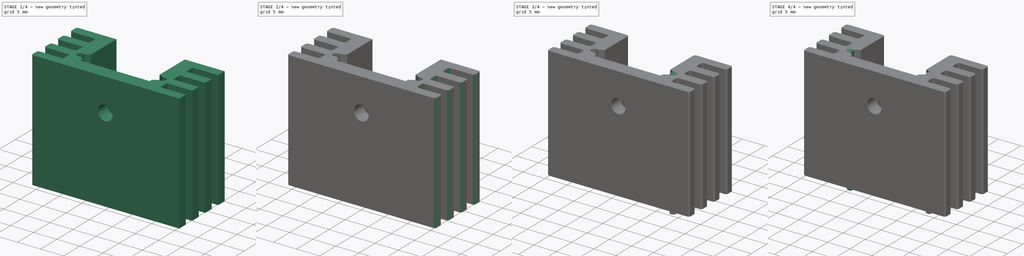
[diagram: build sequence overview — one tinted view per stage of 4, left to right]
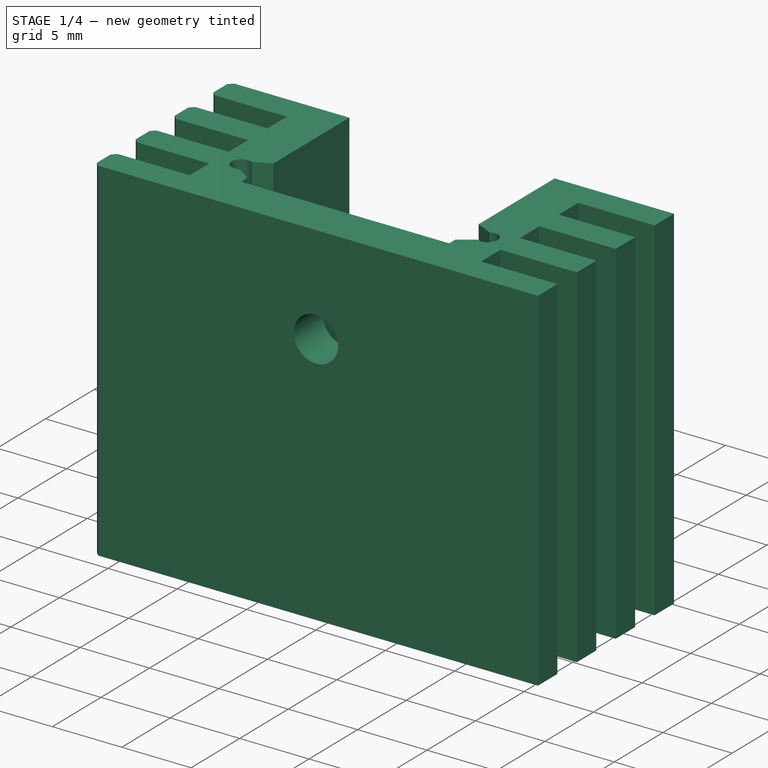
[diagram: stage 1 of 4 — iso view after this stage's code; geometry added in this stage tinted green]
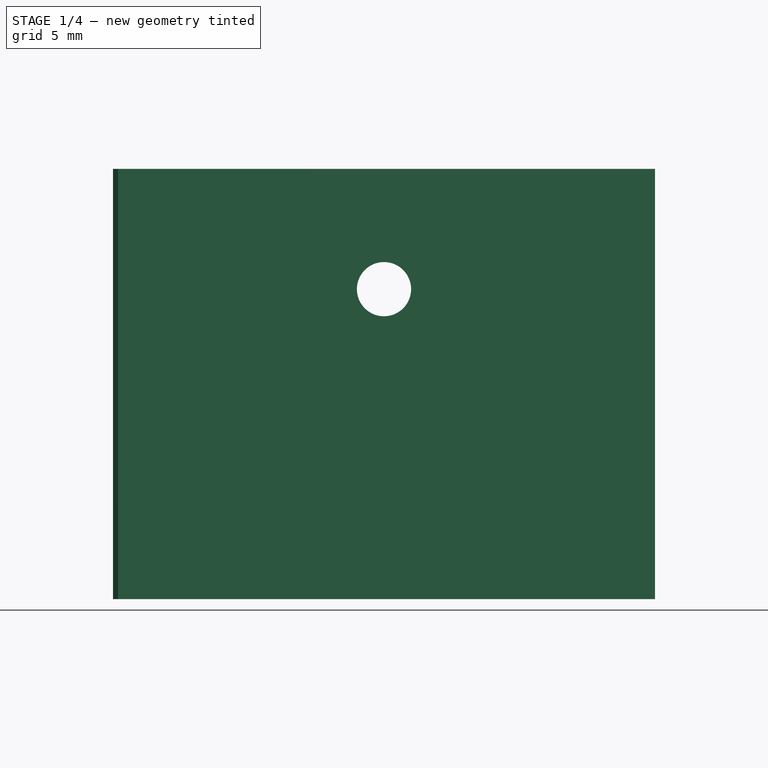
[diagram: stage 1 of 4 — front view after this stage's code; geometry added in this stage tinted green]
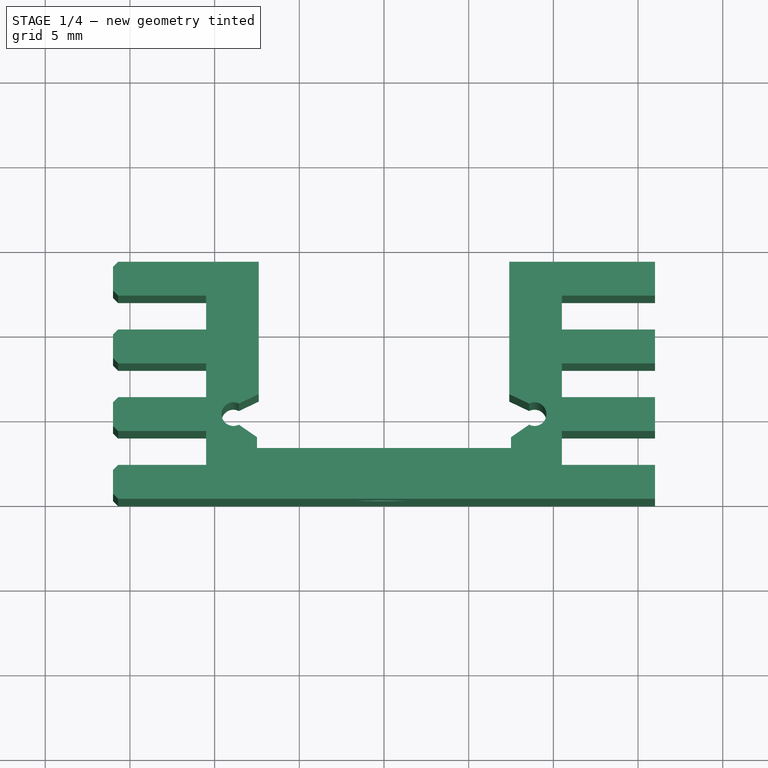
[diagram: stage 1 of 4 — top view after this stage's code; geometry added in this stage tinted green]
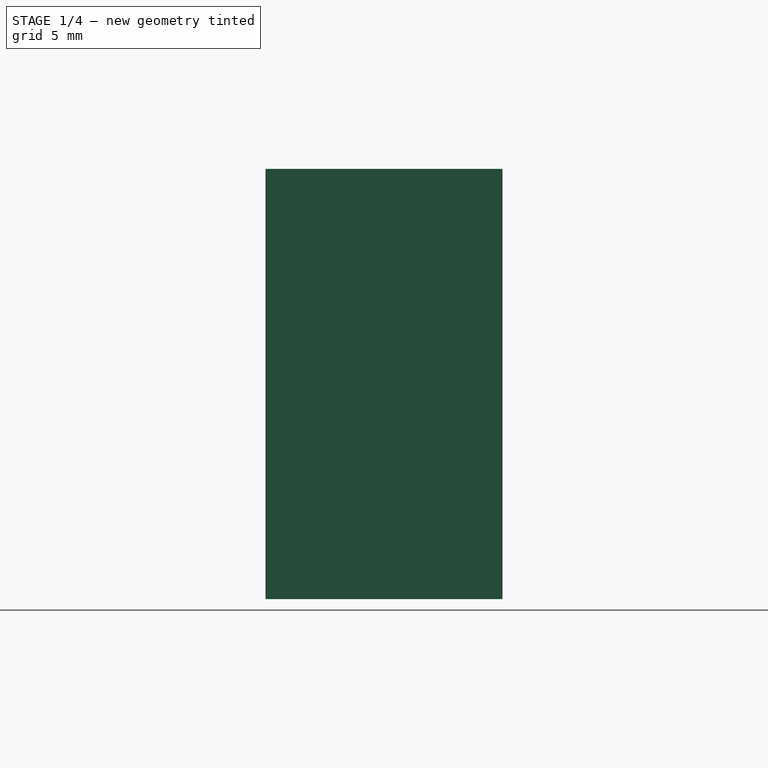
[diagram: stage 1 of 4 — right view after this stage's code; geometry added in this stage tinted green]
FCSTD DOCUMENT  (FreeCAD 0.17R13541 (Git))
Label: hs-132
License: All rights reserved
LicenseURL: http://en.wikipedia.org/wiki/All_rights_reserved
objects: PartDesign::Chamfer×5, Sketcher::SketchObject×4, PartDesign::Pad×3, PartDesign::Body×3, PartDesign::Fillet×2, PartDesign::Pocket×1
note: 22 computed .brp shape members not serialized (recipe doc carries the construction recipe); baked Part::Feature solids carry a one-line shape summary decoded from their .brp

FEATURE [Sketcher::SketchObject] Sketch
  MapMode = 5
  Support = -> [XY_Plane]
  sketch-geometry (40):
    g0: LineSegment StartX=-16 StartY=0 StartZ=0 EndX=16 EndY=0 EndZ=0
    g1: LineSegment StartX=-7.5 StartY=3 StartZ=0 EndX=7.5 EndY=3 EndZ=0
    g2: LineSegment StartX=-16 StartY=0 StartZ=0 EndX=-16 EndY=2 EndZ=0
    g3: LineSegment StartX=-16 StartY=2 StartZ=0 EndX=-10.5 EndY=2 EndZ=0
    g4: LineSegment StartX=-10.5 StartY=2 StartZ=0 EndX=-10.5 EndY=4 EndZ=0
    g5: LineSegment StartX=-10.5 StartY=4 StartZ=0 EndX=-16 EndY=4 EndZ=0
    g6: LineSegment StartX=-16 StartY=4 StartZ=0 EndX=-16 EndY=6 EndZ=0
    g7: LineSegment StartX=-16 StartY=6 StartZ=0 EndX=-10.5 EndY=6 EndZ=0
    g8: LineSegment StartX=-10.5 StartY=6 StartZ=0 EndX=-10.5 EndY=8 EndZ=0
    g9: LineSegment StartX=-10.5 StartY=8 StartZ=0 EndX=-16 EndY=8 EndZ=0
    g10: LineSegment StartX=-16 StartY=8 StartZ=0 EndX=-16 EndY=10 EndZ=0
    g11: LineSegment StartX=-16 StartY=10 StartZ=0 EndX=-10.5 EndY=10 EndZ=0
    g12: LineSegment StartX=-10.5 StartY=10 StartZ=0 EndX=-10.5 EndY=12 EndZ=0
    g13: LineSegment StartX=-10.5 StartY=12 StartZ=0 EndX=-16 EndY=12 EndZ=0
    g14: LineSegment StartX=-16 StartY=12 StartZ=0 EndX=-16 EndY=14 EndZ=0
    g15: LineSegment StartX=-16 StartY=14 StartZ=0 EndX=-7.39555 EndY=14 EndZ=0
    g16: LineSegment StartX=16 StartY=0 StartZ=0 EndX=16 EndY=2 EndZ=0
    g17: LineSegment StartX=16 StartY=2 StartZ=0 EndX=10.5 EndY=2 EndZ=0
    g18: LineSegment StartX=10.5 StartY=2 StartZ=0 EndX=10.5 EndY=4 EndZ=0
    g19: LineSegment StartX=10.5 StartY=4 StartZ=0 EndX=16 EndY=4 EndZ=0
    g20: LineSegment StartX=16 StartY=4 StartZ=0 EndX=16 EndY=6 EndZ=0
    g21: LineSegment StartX=16 StartY=6 StartZ=0 EndX=10.5 EndY=6 EndZ=0
    g22: LineSegment StartX=10.5 StartY=6 StartZ=0 EndX=10.5 EndY=8 EndZ=0
    g23: LineSegment StartX=10.5 StartY=8 StartZ=0 EndX=16 EndY=8 EndZ=0
    g24: LineSegment StartX=16 StartY=8 StartZ=0 EndX=16 EndY=10 EndZ=0
    g25: LineSegment StartX=16 StartY=10 StartZ=0 EndX=10.5 EndY=10 EndZ=0
    g26: LineSegment StartX=10.5 StartY=10 StartZ=0 EndX=10.5 EndY=12 EndZ=0
    g27: LineSegment StartX=10.5 StartY=12 StartZ=0 EndX=16 EndY=12 EndZ=0
    g28: LineSegment StartX=16 StartY=12 StartZ=0 EndX=16 EndY=14 EndZ=0
    g29: LineSegment StartX=16 StartY=14 StartZ=0 EndX=7.39555 EndY=14 EndZ=0
    g30: ArcOfCircle CenterX=-8.89 CenterY=5 CenterZ=0 NormalX=0 NormalY=0 NormalZ=1 AngleXU=0 Radius=0.7 StartAngle=1.09596 EndAngle=5.18722
    g31: ArcOfCircle CenterX=8.89 CenterY=5 CenterZ=0 NormalX=0 NormalY=0 NormalZ=1 AngleXU=0 Radius=0.7 StartAngle=4.23756 EndAngle=8.32881
    g32: LineSegment StartX=-8.56997 StartY=5.62256 StartZ=0 EndX=-7.39555 EndY=6.18 EndZ=0
    g33: LineSegment StartX=-8.56997 StartY=4.37744 StartZ=0 EndX=-7.5 EndY=3.63909 EndZ=0
    g34: LineSegment StartX=-7.5 StartY=3.63909 StartZ=0 EndX=-7.5 EndY=3 EndZ=0
    g35: LineSegment StartX=-7.39555 StartY=14 StartZ=0 EndX=-7.39555 EndY=6.18 EndZ=0
    g36: LineSegment StartX=8.56997 StartY=4.37744 StartZ=0 EndX=7.5 EndY=3.63909 EndZ=0
    g37: LineSegment StartX=8.56997 StartY=5.62256 StartZ=0 EndX=7.39555 EndY=6.18 EndZ=0
    g38: LineSegment StartX=7.5 StartY=3.63909 StartZ=0 EndX=7.5 EndY=3 EndZ=0
    g39: LineSegment StartX=7.39555 StartY=14 StartZ=0 EndX=7.39555 EndY=6.18 EndZ=0
  constraints (122):
    c: Symmetric(g0,g0,g-2)
    c: PointOnObject(g0,g-1)
    c: DistanceX(g0,g0) = 32
    c: Horizontal(g1)
    c: Symmetric(g1,g1,g-2)
    c: DistanceX(g1,g1) = 15
    c: DistanceY(g-1,g1) = 3
    c: Coincident(g0,g2)
    c: Vertical(g2)
    c: Coincident(g2,g3)
    c: Horizontal(g3)
    c: Coincident(g3,g4)
    c: Vertical(g4)
    c: Coincident(g4,g5)
    c: Horizontal(g5)
    c: Coincident(g5,g6)
    c: Vertical(g6)
    c: Coincident(g6,g7)
    c: Horizontal(g7)
    c: Coincident(g7,g8)
    c: Vertical(g8)
    c: Coincident(g8,g9)
    c: Horizontal(g9)
    c: Coincident(g9,g10)
    c: Vertical(g10)
    c: Coincident(g10,g11)
    c: Horizontal(g11)
    c: Coincident(g11,g12)
    c: Vertical(g12)
    c: Coincident(g12,g13)
    c: Horizontal(g13)
    c: Coincident(g13,g14)
    c: Vertical(g14)
    c: Coincident(g14,g15)
    c: Horizontal(g15)
    c: Coincident(g0,g16)
    c: Vertical(g16)
    c: Coincident(g16,g17)
    c: Horizontal(g17)
    c: Coincident(g17,g18)
    c: Vertical(g18)
    c: Coincident(g18,g19)
    c: Horizontal(g19)
    c: Coincident(g19,g20)
    c: Vertical(g20)
    c: Coincident(g20,g21)
    c: Horizontal(g21)
    c: Coincident(g21,g22)
    c: Vertical(g22)
    c: Coincident(g22,g23)
    c: Horizontal(g23)
    c: Coincident(g23,g24)
    c: Vertical(g24)
    c: Coincident(g24,g25)
    c: Horizontal(g25)
    c: Coincident(g25,g26)
    c: Vertical(g26)
    c: Coincident(g26,g27)
    c: Horizontal(g27)
    c: Coincident(g27,g28)
    c: Vertical(g28)
    c: Coincident(g28,g29)
    c: Horizontal(g29)
    c: DistanceY(g2,g2) = 2
    c: Equal(g2,g4)
    c: Equal(g4,g6)
    c: Equal(g6,g8)
    c: Equal(g8,g10)
    c: Equal(g10,g12)
    c: Equal(g12,g14)
    c: Equal(g14,g16)
    c: Equal(g16,g18)
    c: Equal(g18,g20)
    c: Equal(g20,g22)
    c: Equal(g22,g24)
    c: Equal(g24,g26)
    c: Equal(g26,g28)
    c: DistanceX(g3,g17) = 21
    c: Symmetric(g3,g17,g-2)
    c: Equal(g3,g5)
    c: Equal(g5,g7)
    c: Equal(g7,g9)
    c: Equal(g9,g11)
    c: Equal(g11,g13)
    c: Equal(g13,g19)
    c: Equal(g19,g21)
    c: Equal(g21,g23)
    c: Equal(g23,g25)
    c: Equal(g25,g27)
    c: Radius(g30) = 0.7
    c: Equal(g31,g30)
    c: DistanceX(g30,g31) = 17.78
    c: DistanceY(g-1,g30) = 5
    c: Coincident(g32,g30)
    c: Coincident(g33,g30)
    c: Angle(g33,g32) = 1.0472
    c: Coincident(g34,g33)
    c: Coincident(g34,g1)
    c: Vertical(g34)
    c: Coincident(g35,g15)
    c: Coincident(g35,g32)
    c: Vertical(g35)
    c: Coincident(g36,g31)
    c: Coincident(g37,g31)
    c: Coincident(g38,g36)
    c: Coincident(g38,g1)
    c: Vertical(g38)
    c: Coincident(g39,g29)
    c: Coincident(g39,g37)
    c: Vertical(g39)
    c: Equal(g36,g37)
    c: DistanceX(g30,g30) = 0
    c: Equal(g33,g32)
    c: Equal(g32,g36)
    c: Equal(g36,g37)
    c: Equal(g35,g39)
    c: Equal(g34,g38)
    c: DistanceX(g31,g31) = 0
    c: Angle(g37,g36) = 1.0472
    c: Symmetric(g15,g29,g-2)
    c: DistanceY(g35,g35) = 7.82
    c: Distance(g33) = 1.3
FEATURE [PartDesign::Pad] Pad
  Length = 25.4
  Length2 = 100
  Profile = -> Sketch
  Type = 0
FEATURE [Sketcher::SketchObject] Sketch001
  MapMode = 5
  Placement = pos=(0,0,0) rot=(1,0,0;1.5708rad)
  Support = -> [Pad]
  sketch-geometry (1):
    g0: Circle CenterX=0 CenterY=18.3 CenterZ=0 NormalX=0 NormalY=0 NormalZ=1 AngleXU=0 Radius=1.6
  constraints (3):
    c: PointOnObject(g0,g-2)
    c: DistanceY(g-1,g0) = 18.3
    c: Radius(g0) = 1.6
FEATURE [PartDesign::Pocket] Pocket
  BaseFeature = -> Pad
  Length = 5
  Length2 = 100
  Profile = -> Sketch001
  Type = 1
FEATURE [PartDesign::Body] Body002
  Group = -> [Sketch003,Pad002,Fillet001]
  Origin = -> Origin002
  Tip = -> Fillet001
FEATURE [PartDesign::Chamfer] Chamfer
  Base = -> Pocket [Edge114,Edge115,Edge118,Edge119,Edge122,Edge123,Edge2,Edge1]
  BaseFeature = -> Pocket
  Size = 0.3
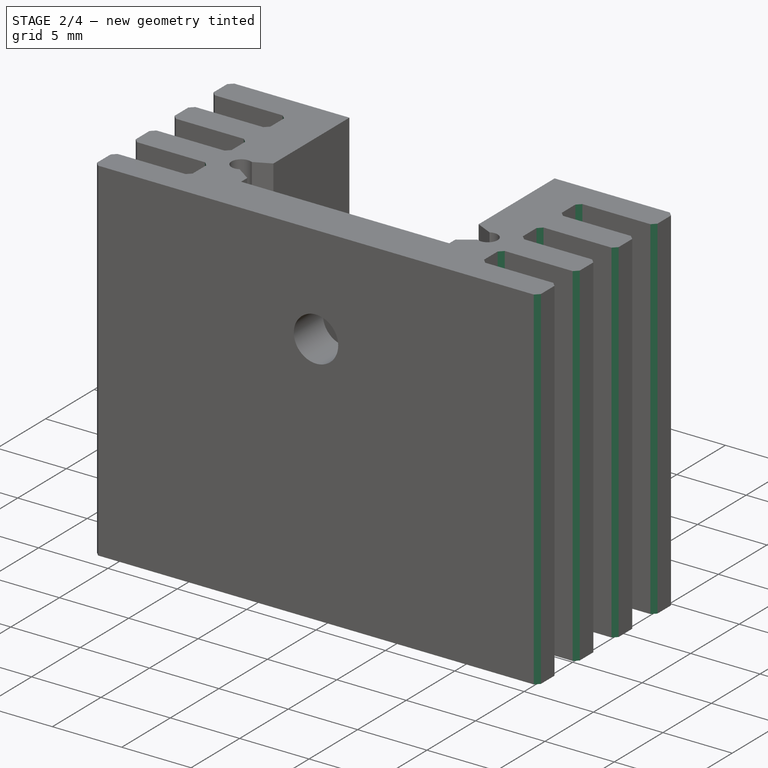
[diagram: stage 2 of 4 — iso view after this stage's code; geometry added in this stage tinted green]
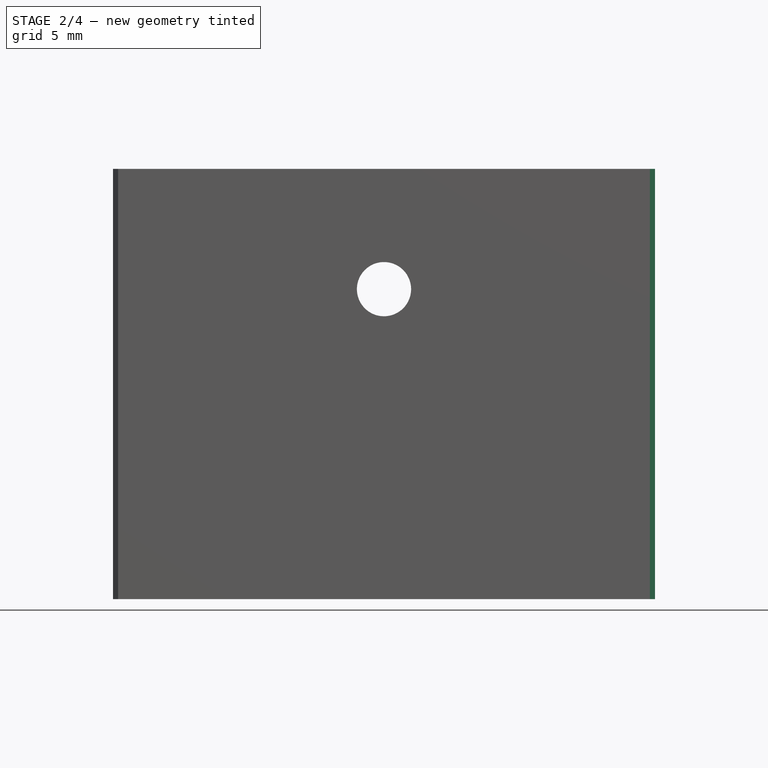
[diagram: stage 2 of 4 — front view after this stage's code; geometry added in this stage tinted green]
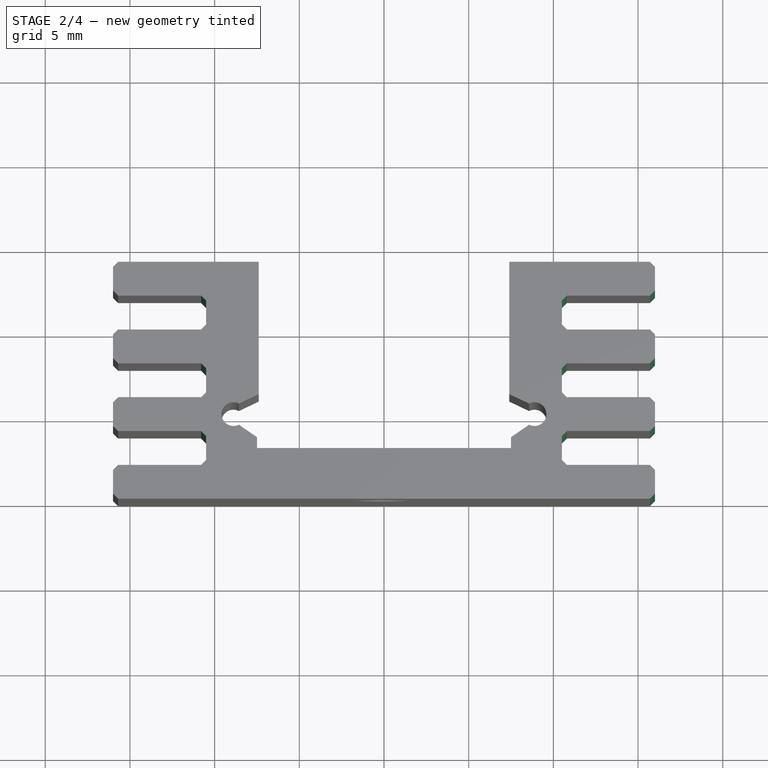
[diagram: stage 2 of 4 — top view after this stage's code; geometry added in this stage tinted green]
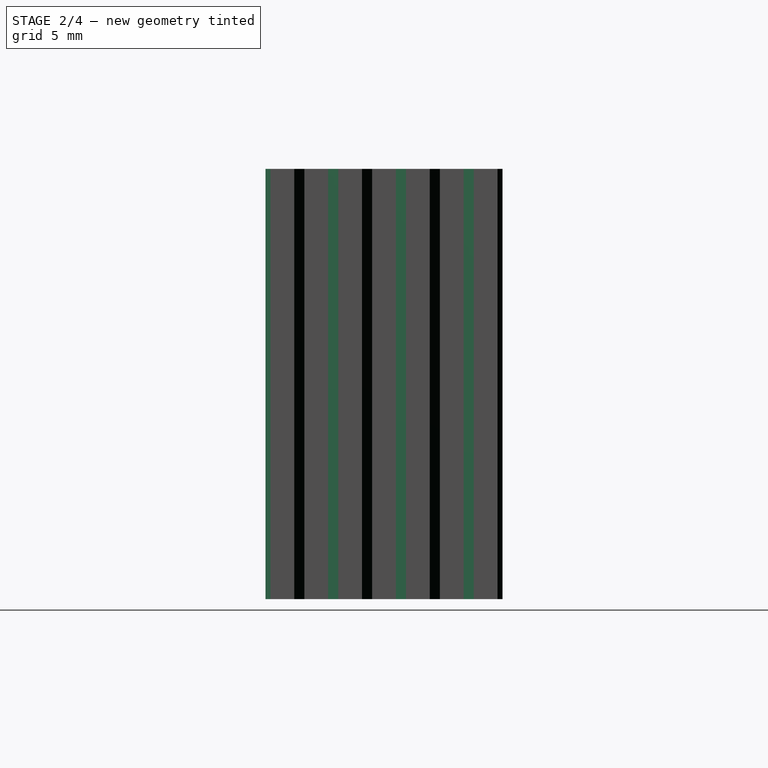
[diagram: stage 2 of 4 — right view after this stage's code; geometry added in this stage tinted green]
FEATURE [PartDesign::Chamfer] Chamfer001
  Base = -> Chamfer [Edge129,Edge117,Edge105,Edge127,Edge115,Edge103]
  BaseFeature = -> Chamfer
  Size = 0.3
FEATURE [PartDesign::Chamfer] Chamfer002
  Base = -> Chamfer001 [Edge125,Edge121,Edge109,Edge105,Edge93,Edge89,Edge77,Edge72]
  BaseFeature = -> Chamfer001
  Size = 0.3
FEATURE [PartDesign::Chamfer] Chamfer003
  Base = -> Chamfer002 [Edge79,Edge103,Edge127,Edge83,Edge107,Edge131]
  BaseFeature = -> Chamfer002
  Size = 0.3
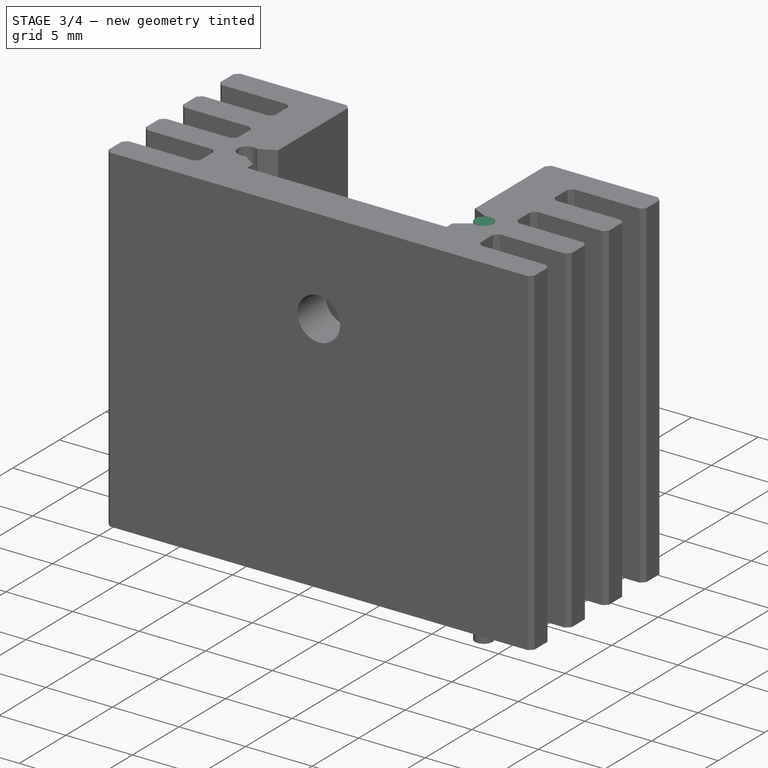
[diagram: stage 3 of 4 — iso view after this stage's code; geometry added in this stage tinted green]
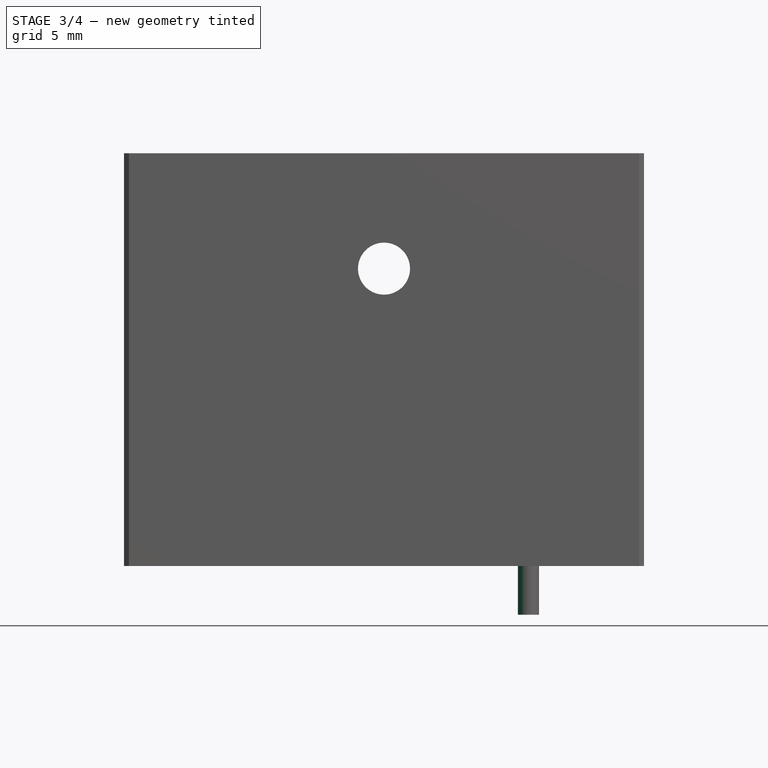
[diagram: stage 3 of 4 — front view after this stage's code; geometry added in this stage tinted green]
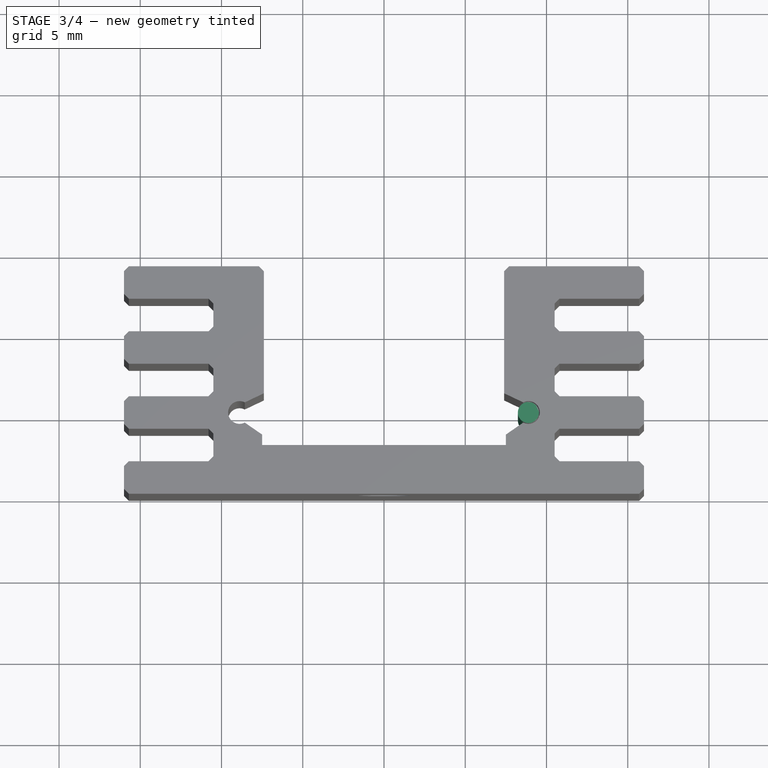
[diagram: stage 3 of 4 — top view after this stage's code; geometry added in this stage tinted green]
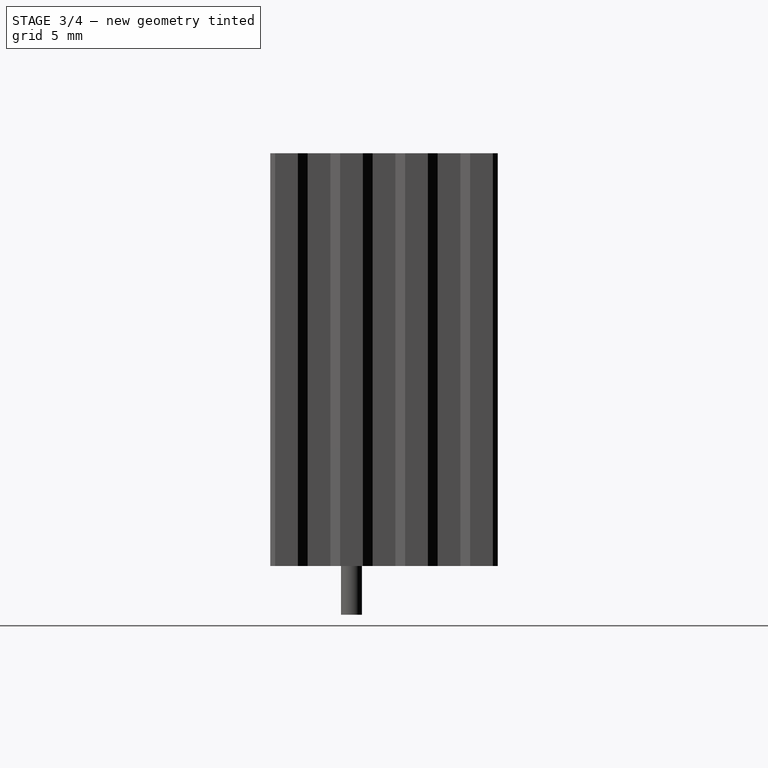
[diagram: stage 3 of 4 — right view after this stage's code; geometry added in this stage tinted green]
FEATURE [Sketcher::SketchObject] Sketch003
  AttachmentOffset = pos=(0,0,-3) rot=(0,0,1;0rad)
  MapMode = 5
  Placement = pos=(0,0,-3) rot=(0,0,1;0rad)
  Support = -> [XY_Plane002]
  sketch-geometry (1):
    g0: Circle CenterX=8.89 CenterY=5 CenterZ=0 NormalX=0 NormalY=0 NormalZ=1 AngleXU=0 Radius=0.65
  constraints (3):
    c: DistanceY(g-1,g0) = 5
    c: Radius(g0) = 0.65
    c: DistanceX(g-1,g0) = 8.89
FEATURE [PartDesign::Pad] Pad002
  Length = 28.4
  Length2 = 100
  Profile = -> Sketch003
  Type = 0
FEATURE [PartDesign::Chamfer] Chamfer004
  Base = -> Chamfer003 [Edge200,Edge165]
  BaseFeature = -> Chamfer003
  Size = 0.3
FEATURE [PartDesign::Body] Body
  Group = -> [Sketch,Pad,Sketch001,Pocket,Chamfer,Chamfer001,Chamfer002,Chamfer003,Chamfer004]
  Origin = -> Origin
  Tip = -> Chamfer004
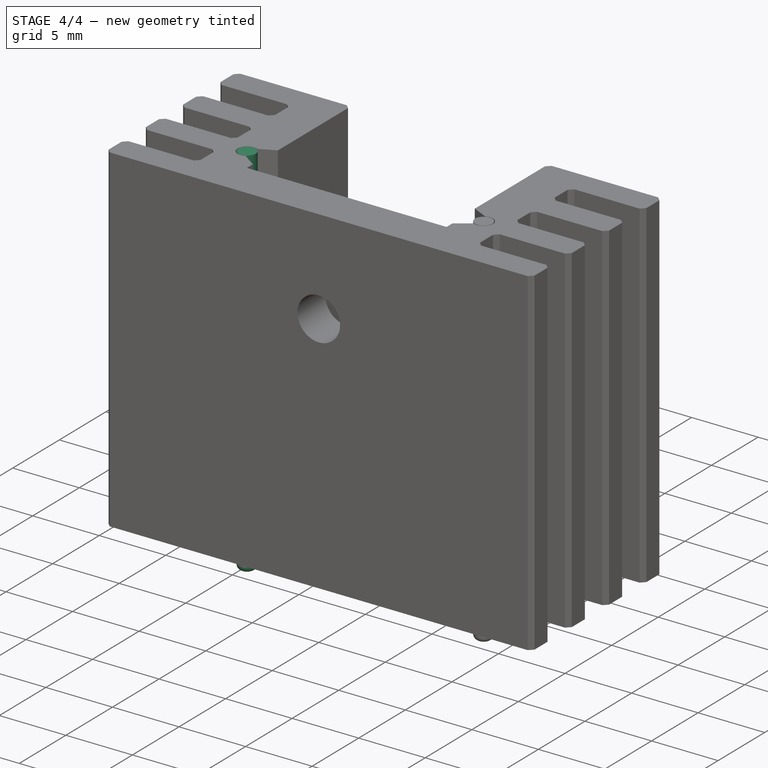
[diagram: stage 4 of 4 — iso view after this stage's code; geometry added in this stage tinted green]
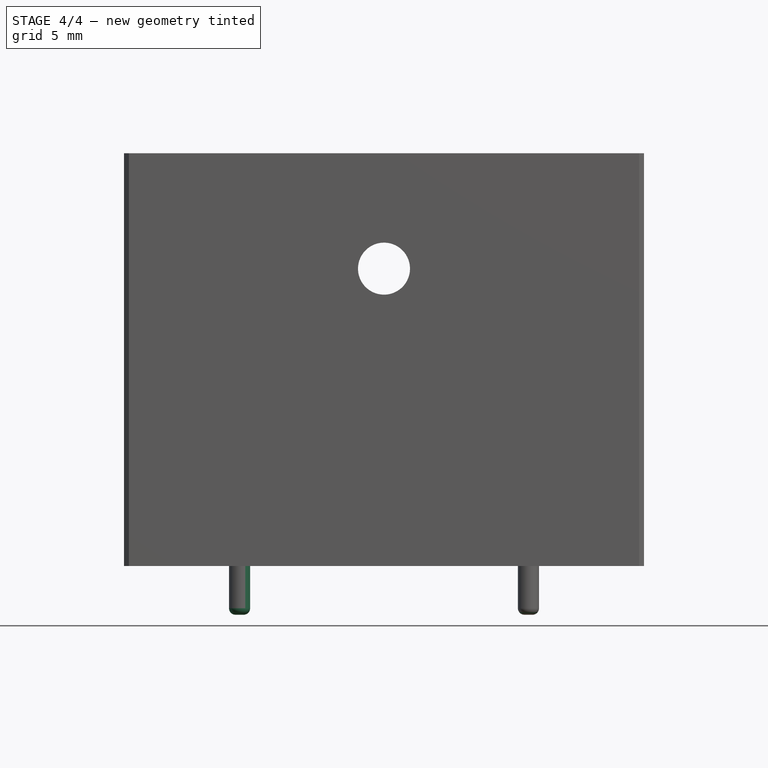
[diagram: stage 4 of 4 — front view after this stage's code; geometry added in this stage tinted green]
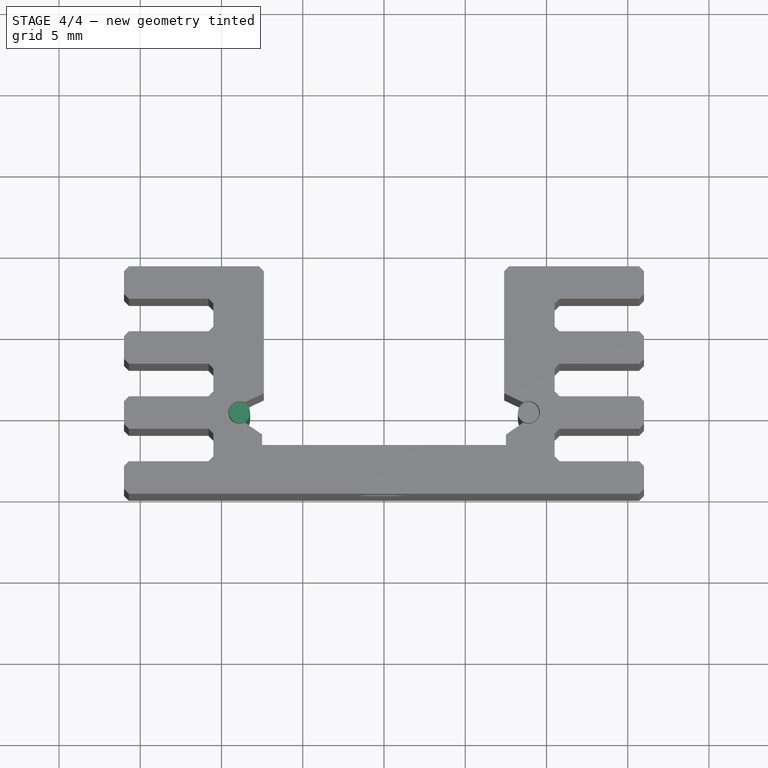
[diagram: stage 4 of 4 — top view after this stage's code; geometry added in this stage tinted green]
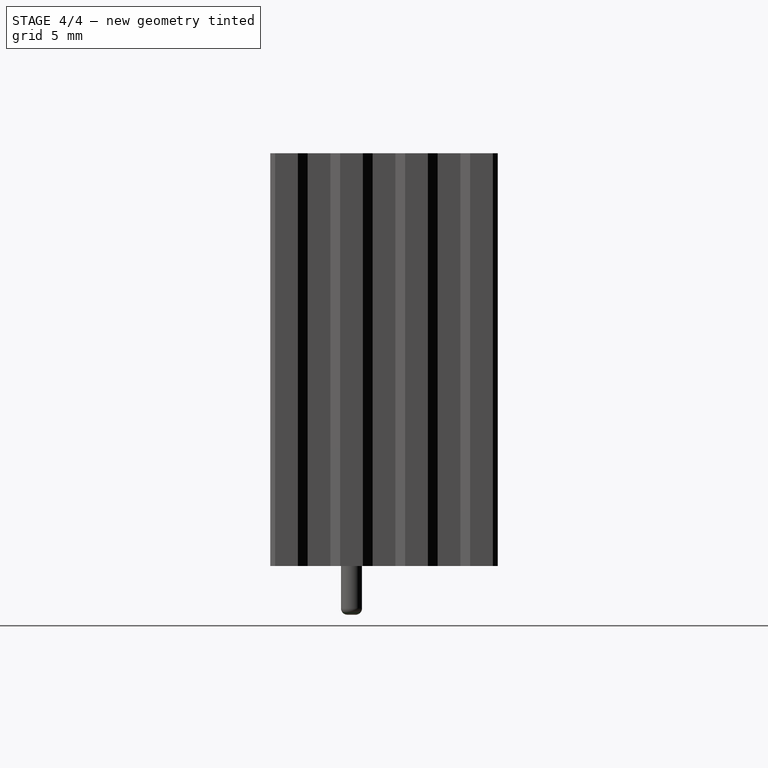
[diagram: stage 4 of 4 — right view after this stage's code; geometry added in this stage tinted green]
FEATURE [Sketcher::SketchObject] Sketch002
  AttachmentOffset = pos=(0,0,-3) rot=(0,0,1;0rad)
  MapMode = 5
  Placement = pos=(0,0,-3) rot=(0,0,1;0rad)
  Support = -> [XY_Plane001]
  sketch-geometry (1):
    g0: Circle CenterX=-8.89 CenterY=5 CenterZ=0 NormalX=0 NormalY=0 NormalZ=1 AngleXU=0 Radius=0.65
  constraints (3):
    c: DistanceY(g-1,g0) = 5
    c: Radius(g0) = 0.65
    c: DistanceX(g0,g-1) = 8.89
FEATURE [PartDesign::Pad] Pad001
  Length = 28.4
  Length2 = 100
  Profile = -> Sketch002
  Type = 0
FEATURE [PartDesign::Fillet] Fillet
  Base = -> Pad001 [Edge2]
  BaseFeature = -> Pad001
  Radius = 0.4
FEATURE [PartDesign::Body] Body001
  Group = -> [Sketch002,Pad001,Fillet]
  Origin = -> Origin001
  Tip = -> Fillet
FEATURE [PartDesign::Fillet] Fillet001
  Base = -> Pad002 [Edge2]
  BaseFeature = -> Pad002
  Radius = 0.4
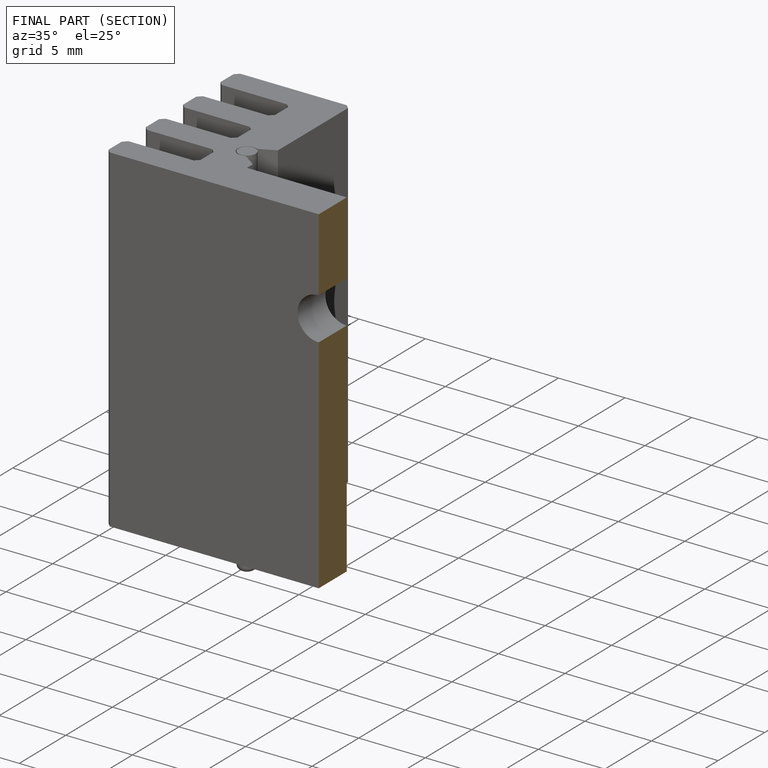
[diagram: finished part — half-section view (interior)]
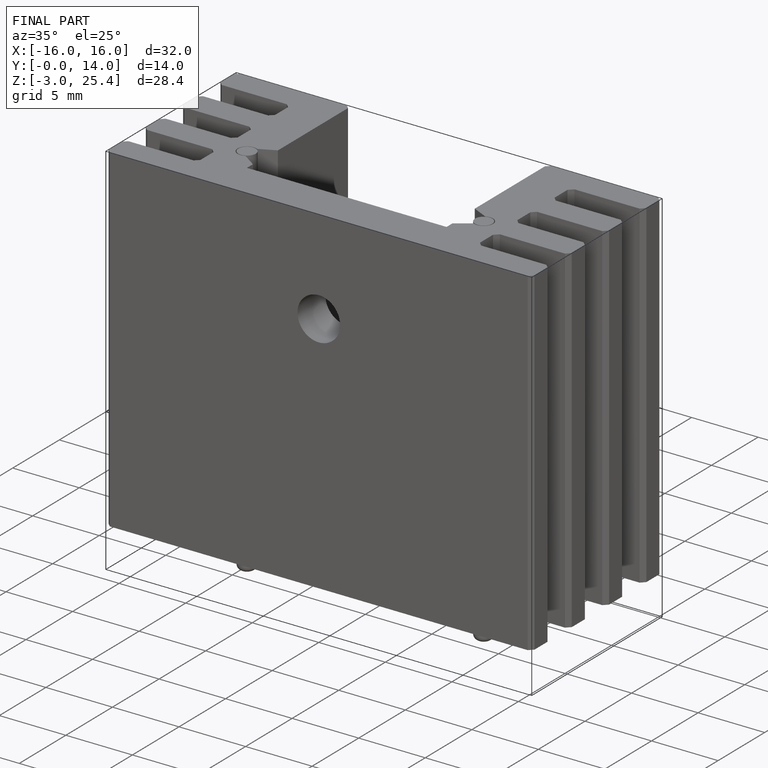
[diagram: finished part — iso view with bounding-box wireframe]
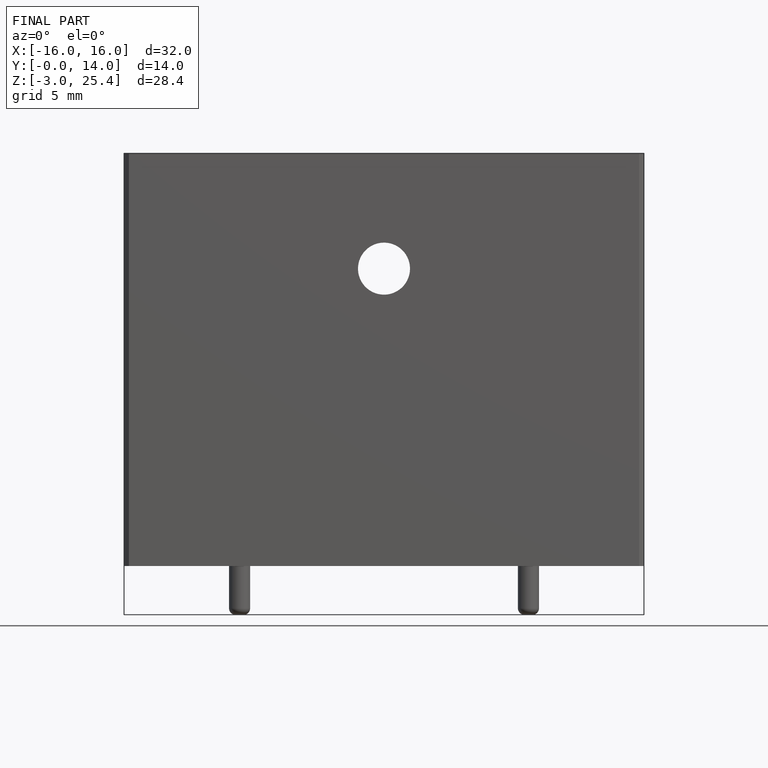
[diagram: finished part — front view with bounding-box wireframe]
